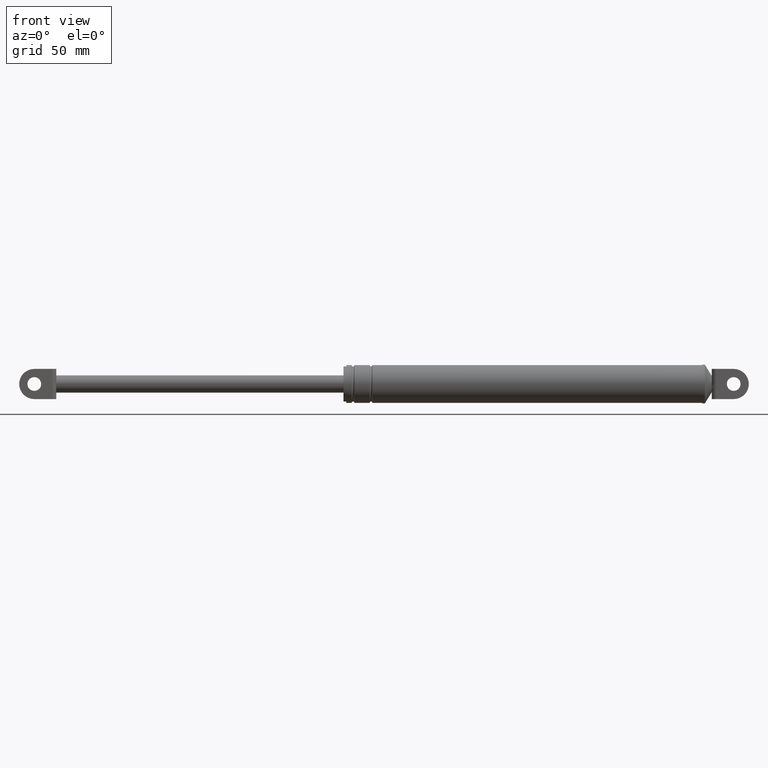
[diagram: clean part render]
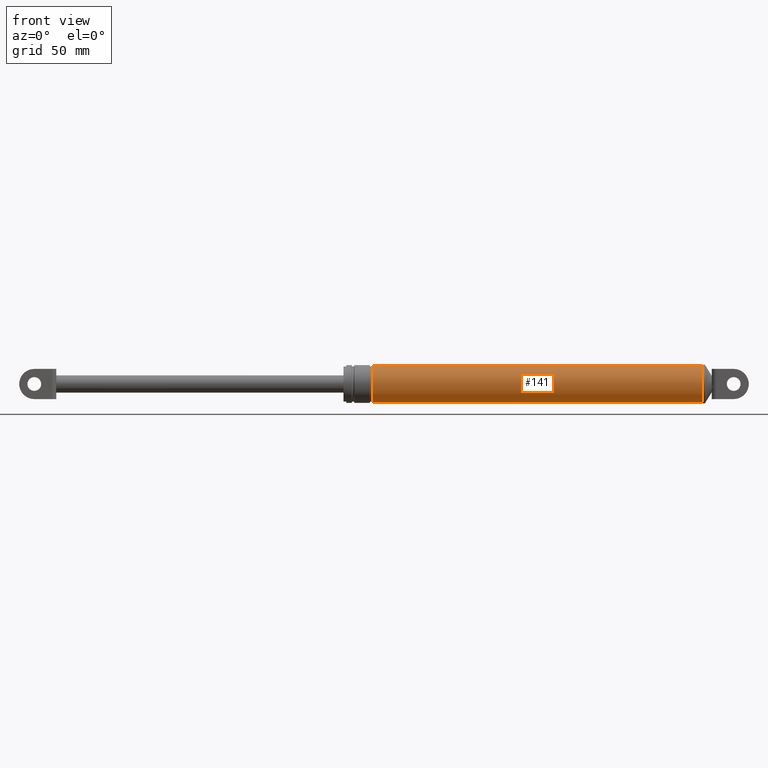
[diagram: same view with one face highlighted and labeled with its STEP entity id]
A machine part, front view. The second image highlights one B-rep face of the part: STEP entity #141.
In plain terms, the highlighted cylindrical surface (edge-blend (fillet) strip) has radius 13.7 mm, axis along (1, 0, 0).
Its self-contained STEP definition (entity closure, byte-faithful):
#141=ADVANCED_FACE('',(#473),#472,.T.);
#472=CYLINDRICAL_SURFACE('',#1044,1.37000000000E+001);
#473=FACE_OUTER_BOUND('',#1045,.T.);
#1041=CARTESIAN_POINT('',(0.00000000000E+000,0.00000000000E+000,1.88159193491E+002));
#1042=DIRECTION('',(1.00000000000E+000,-0.00000000000E+000,-0.00000000000E+000));
#1043=DIRECTION('',(0.00000000000E+000,0.00000000000E+000,-1.00000000000E+000));
#1044=AXIS2_PLACEMENT_3D('',#1041,#1042,#1043);
#1045=EDGE_LOOP('',(#1540,#1541,#1542,#1543));
#1540=ORIENTED_EDGE('',*,*,#1785,.F.);
#1541=ORIENTED_EDGE('',*,*,#1782,.T.);
#1542=ORIENTED_EDGE('',*,*,#1762,.T.);
#1543=ORIENTED_EDGE('',*,*,#1784,.F.);
#1762=EDGE_CURVE('',#2226,#2227,#2228,.T.);
#1782=EDGE_CURVE('',#2358,#2226,#2359,.T.);
#1784=EDGE_CURVE('',#2365,#2227,#2372,.T.);
#1785=EDGE_CURVE('',#2358,#2365,#2378,.T.);
#2226=VERTEX_POINT('',#3138);
#2227=VERTEX_POINT('',#3139);
#2228=CIRCLE('',#3143,1.37000000000E+001);
#2358=VERTEX_POINT('',#3214);
#2359=(BOUNDED_CURVE() B_SPLINE_CURVE(1,(#3215,#3216),.UNSPECIFIED.,.F.,.F.) B_SPLINE_CURVE_WITH_KNOTS((2,2),(3.84615385907E-002,9.61538461508E-001),.UNSPECIFIED.) CURVE() GEOMETRIC_REPRESENTATION_ITEM() RATIONAL_B_SPLINE_CURVE((1.00000000000E+000,1.00000000000E+000)) REPRESENTATION_ITEM('') );
#2365=VERTEX_POINT('',#3217);
#2372=(BOUNDED_CURVE() B_SPLINE_CURVE(1,(#3222,#3223),.UNSPECIFIED.,.F.,.F.) B_SPLINE_CURVE_WITH_KNOTS((2,2),(3.84615384615E-002,9.61538461538E-001),.UNSPECIFIED.) CURVE() GEOMETRIC_REPRESENTATION_ITEM() RATIONAL_B_SPLINE_CURVE((7.50000000000E-001,7.50000000000E-001)) REPRESENTATION_ITEM('') );
#2378=CIRCLE('',#3227,1.37000000000E+001);
#3138=CARTESIAN_POINT('',(4.40378631324E+002,0.00000000000E+000,1.74459193491E+002));
#3139=CARTESIAN_POINT('',(4.40378631324E+002,0.00000000000E+000,2.01859193491E+002));
#3140=CARTESIAN_POINT('',(4.40378631324E+002,0.00000000000E+000,1.88159193491E+002));
#3141=DIRECTION('',(-1.00000000000E+000,0.00000000000E+000,0.00000000000E+000));
#3142=DIRECTION('',(0.00000000000E+000,-1.22460635382E-016,1.00000000000E+000));
#3143=AXIS2_PLACEMENT_3D('',#3140,#3141,#3142);
#3214=CARTESIAN_POINT('',(2.00378631324E+002,0.00000000000E+000,1.74459193491E+002));
#3215=CARTESIAN_POINT('',(2.00378631357E+002,0.00000000000E+000,1.74459193491E+002));
#3216=CARTESIAN_POINT('',(4.40378631316E+002,0.00000000000E+000,1.74459193491E+002));
#3217=CARTESIAN_POINT('',(2.00378631324E+002,0.00000000000E+000,2.01859193491E+002));
#3222=CARTESIAN_POINT('',(2.00378631324E+002,-5.92118946467E-016,2.01859193491E+002));
#3223=CARTESIAN_POINT('',(4.40378631324E+002,-5.92118946467E-016,2.01859193491E+002));
#3224=CARTESIAN_POINT('',(2.00378631324E+002,0.00000000000E+000,1.88159193491E+002));
#3225=DIRECTION('',(-1.00000000000E+000,0.00000000000E+000,0.00000000000E+000));
#3226=DIRECTION('',(0.00000000000E+000,-1.22460635382E-016,1.00000000000E+000));
#3227=AXIS2_PLACEMENT_3D('',#3224,#3225,#3226);